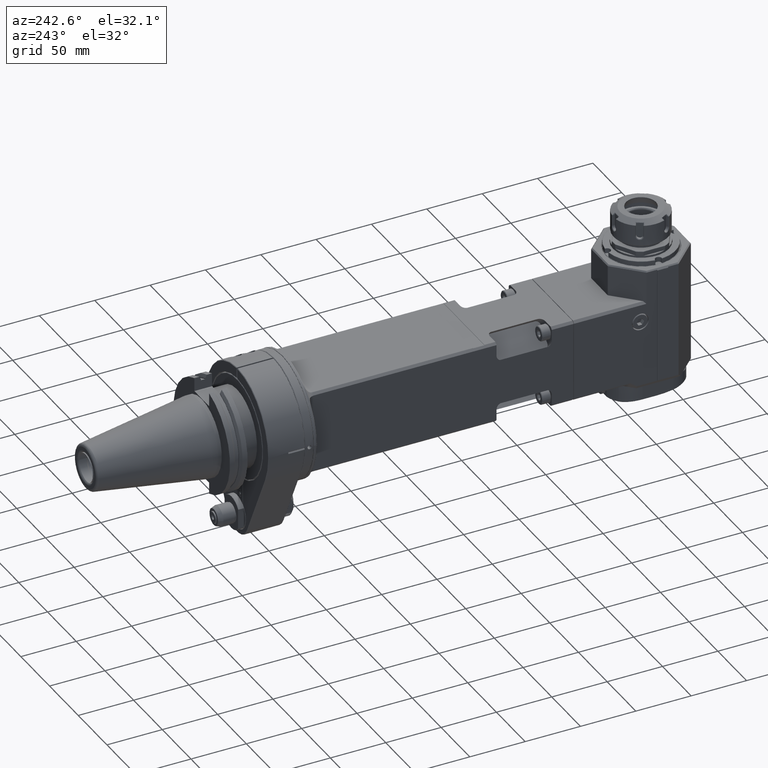
[diagram: clean part render]
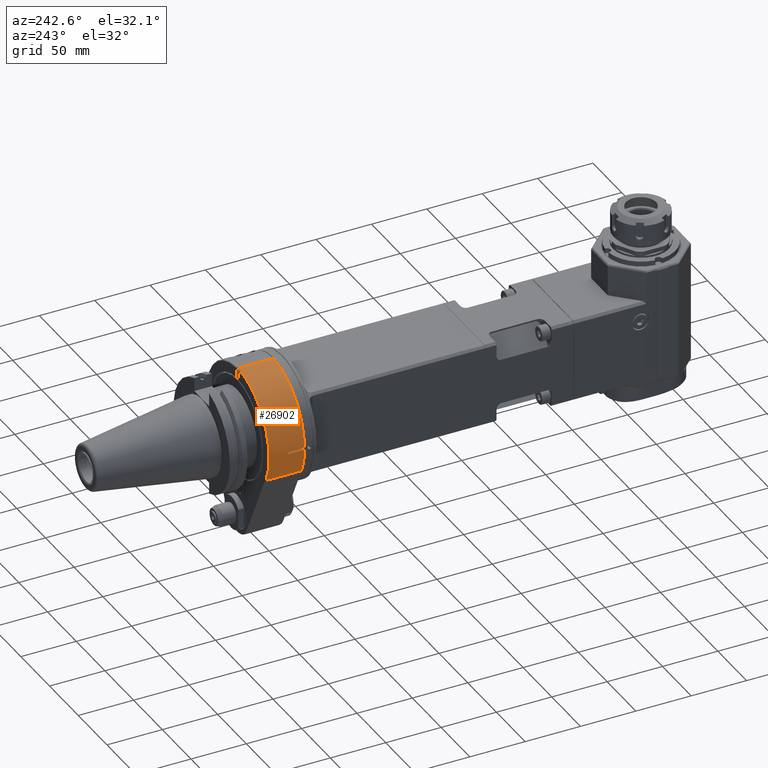
[diagram: same view with one face highlighted and labeled with its STEP entity id]
A machine part, auxiliary view. The second image highlights one B-rep face of the part: STEP entity #26902.
In plain terms, the highlighted cylindrical surface (partial cylindrical patch) has radius 55 mm, axis along (0, 1, 0).
Its self-contained STEP definition (entity closure, byte-faithful):
#1881=CIRCLE('',#28741,55.);
#1883=CIRCLE('',#28745,55.);
#1902=CIRCLE('',#28781,55.);
#1903=CIRCLE('',#28783,55.);
#2805=CYLINDRICAL_SURFACE('',#28782,55.);
#3133=FACE_OUTER_BOUND('',#4761,.T.);
#4761=EDGE_LOOP('',(#18278,#18279,#18280,#18281,#18282,#18283,#18284,#18285));
#6695=LINE('',#39530,#8892);
#6697=LINE('',#39537,#8894);
#6724=LINE('',#39661,#8921);
#6725=LINE('',#39674,#8922);
#8892=VECTOR('',#31769,14.49978943494);
#8894=VECTOR('',#31777,14.49978934979);
#8921=VECTOR('',#31874,10.);
#8922=VECTOR('',#31887,31.99973945275);
#11235=VERTEX_POINT('',#39524);
#11237=VERTEX_POINT('',#39528);
#11238=VERTEX_POINT('',#39532);
#11239=VERTEX_POINT('',#39536);
#11240=VERTEX_POINT('',#39540);
#11276=VERTEX_POINT('',#39656);
#11277=VERTEX_POINT('',#39660);
#11280=VERTEX_POINT('',#39672);
#13976=EDGE_CURVE('',#11237,#11235,#6695,.T.);
#13977=EDGE_CURVE('',#11235,#11238,#1881,.T.);
#13979=EDGE_CURVE('',#11238,#11239,#6697,.T.);
#13981=EDGE_CURVE('',#11240,#11239,#1883,.T.);
#14033=EDGE_CURVE('',#11276,#11277,#6724,.T.);
#14037=EDGE_CURVE('',#11237,#11277,#1902,.T.);
#14038=EDGE_CURVE('',#11276,#11280,#1903,.T.);
#14039=EDGE_CURVE('',#11240,#11280,#6725,.T.);
#18278=ORIENTED_EDGE('',*,*,#13977,.F.);
#18279=ORIENTED_EDGE('',*,*,#13976,.F.);
#18280=ORIENTED_EDGE('',*,*,#14037,.T.);
#18281=ORIENTED_EDGE('',*,*,#14033,.F.);
#18282=ORIENTED_EDGE('',*,*,#14038,.T.);
#18283=ORIENTED_EDGE('',*,*,#14039,.F.);
#18284=ORIENTED_EDGE('',*,*,#13981,.T.);
#18285=ORIENTED_EDGE('',*,*,#13979,.F.);
#26902=ADVANCED_FACE('',(#3133),#2805,.T.);
#28741=AXIS2_PLACEMENT_3D('',#39533,#31772,#31773);
#28745=AXIS2_PLACEMENT_3D('',#39541,#31782,#31783);
#28781=AXIS2_PLACEMENT_3D('',#39670,#31881,#31882);
#28782=AXIS2_PLACEMENT_3D('',#39671,#31883,#31884);
#28783=AXIS2_PLACEMENT_3D('',#39673,#31885,#31886);
#31769=DIRECTION('',(8.56637861799699E-10,0.999999999999999,4.75295641973499E-8));
#31772=DIRECTION('center_axis',(0.,-1.,0.));
#31773=DIRECTION('ref_axis',(-0.999837636446488,0.,0.0180194546282498));
#31777=DIRECTION('',(-9.07759464180499E-10,-0.999999999999999,5.03668325930399E-8));
#31782=DIRECTION('center_axis',(0.,1.,0.));
#31783=DIRECTION('ref_axis',(-0.899218410359521,0.,-0.43750000053771));
#31874=DIRECTION('',(0.,-1.,0.));
#31881=DIRECTION('center_axis',(0.,1.,0.));
#31882=DIRECTION('ref_axis',(-0.999837636446487,0.,0.0180194546283098));
#31883=DIRECTION('center_axis',(0.,1.,0.));
#31884=DIRECTION('ref_axis',(-0.851387512030188,0.,0.524537228763647));
#31885=DIRECTION('center_axis',(0.,-1.,0.));
#31886=DIRECTION('ref_axis',(-0.0136363636363499,0.,0.999907020470792));
#31887=DIRECTION('',(5.768077461949E-11,1.,-1.167938596251E-10));
#39524=CARTESIAN_POINT('',(-54.99107000456,15.,0.9910700045563));
#39528=CARTESIAN_POINT('',(-54.991070090994,0.500209248316411,0.991069075922385));
#39530=CARTESIAN_POINT('',(-54.99107001698,0.5002105650572,0.9910693153876));
#39532=CARTESIAN_POINT('',(-54.99107000456,15.,-0.9910700045573));
#39533=CARTESIAN_POINT('Origin',(0.,15.,0.));
#39536=CARTESIAN_POINT('',(-54.9910700961689,0.500209254661559,-0.991069020445104));
#39537=CARTESIAN_POINT('',(-54.99107000456,15.,-0.9910700045573));
#39540=CARTESIAN_POINT('',(-49.4570126851416,0.500104879983724,-24.0625000849106));
#39541=CARTESIAN_POINT('Origin',(8.073541935074E-13,0.5002091422822,-3.819167104711E-13));
#39656=CARTESIAN_POINT('',(-0.750000000009452,32.4997245197308,54.9948861254034));
#39660=CARTESIAN_POINT('',(-0.7500000000079,0.500209141297761,54.9948861254829));
#39661=CARTESIAN_POINT('',(-0.75,0.,54.9948861258936));
#39670=CARTESIAN_POINT('Origin',(8.073541935074E-13,0.5002091422818,-3.819167104711E-13));
#39671=CARTESIAN_POINT('Origin',(0.,0.,0.));
#39672=CARTESIAN_POINT('',(-49.457012697233,32.4998619131206,-24.0625000954287));
#39673=CARTESIAN_POINT('Origin',(-8.206768498029E-13,32.49972451855,2.84217194304E-14));
#39674=CARTESIAN_POINT('',(-49.45701257004,0.5001131670995,-24.06250002891));